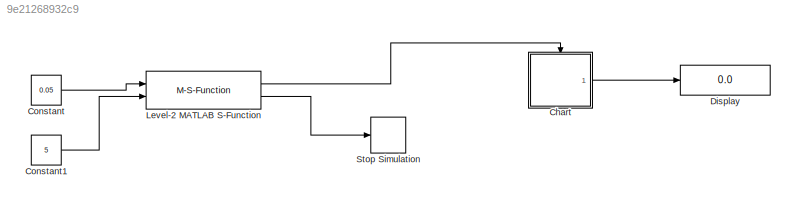
MODEL slx_9e21268932c9
KIND model
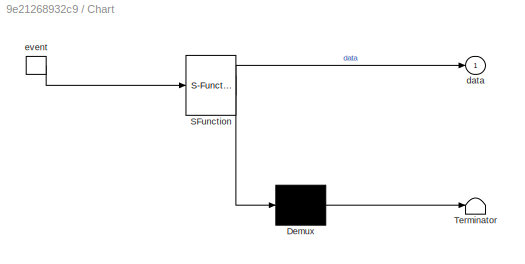
BLOCK [SubSystem] Chart
  ErrorFcn = Stateflow.Translate.translate
  PermitHierarchicalResolution = ExplicitOnly
  Ports = [0, 1, 0, 1]
  RequestExecContextInheritance = off
  SFBlockType = Chart
  TreatAsAtomicUnit = on
BLOCK [Demux] Chart/ Demux 
  Outputs = 1
  Ports = [1, 1]
BLOCK [S-Function] Chart/ SFunction 
  EnableBusSupport = on
  FunctionName = sf_sfun
  PortCounts = [1 2]
  Ports = [1, 2]
  Tag = Stateflow S-Function cpu_time_test 3
BLOCK [Terminator] Chart/ Terminator 
BLOCK [Outport] Chart/data
  IconDisplay = Port number
BLOCK [TriggerPort] Chart/event
  Ports = [0, 1]
  ShowOutputPort = on
  StatesWhenEnabling = held
BLOCK [Constant] Constant
  Value = 0.05
BLOCK [Constant] Constant1
  Value = 5
BLOCK [Display] Display
  Decimation = 1
  Ports = [1]
BLOCK [M-S-Function] Level-2 MATLAB S-Function
  FunctionName = test_cputime
  Ports = [2, 2]
BLOCK [Stop] Stop Simulation
LINE Chart:1 -> Display:1
LINE Constant1:1 -> Level-2 MATLAB S-Function:2
LINE Constant:1 -> Level-2 MATLAB S-Function:1
LINE Level-2 MATLAB S-Function:1 -> Chart:trigger
LINE Level-2 MATLAB S-Function:2 -> Stop Simulation:1
CHART Chart states=2 transitions=3
  STATE_LABEL 's1\n'
  STATE_LABEL 's2'
